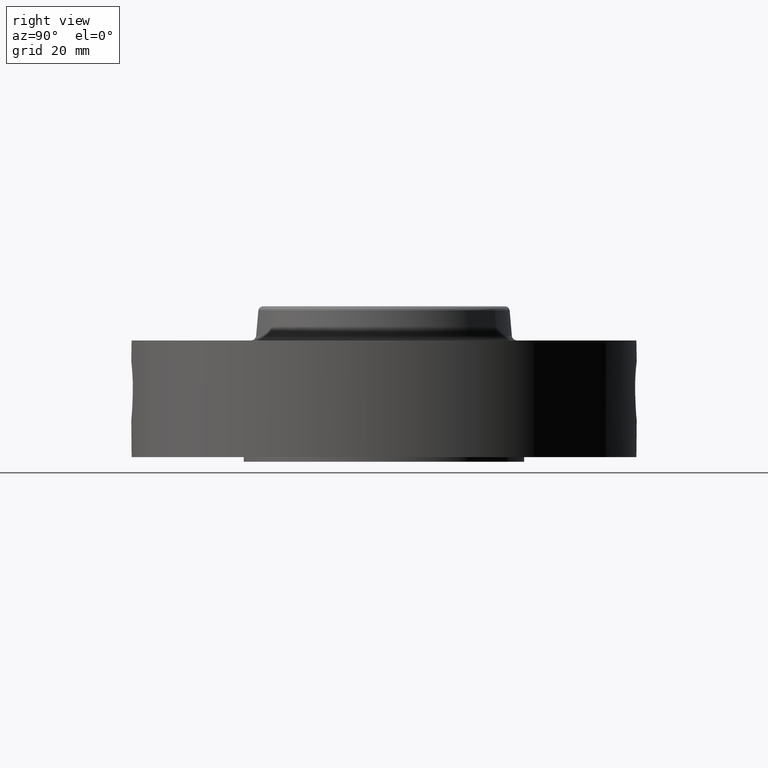
[diagram: clean part render]
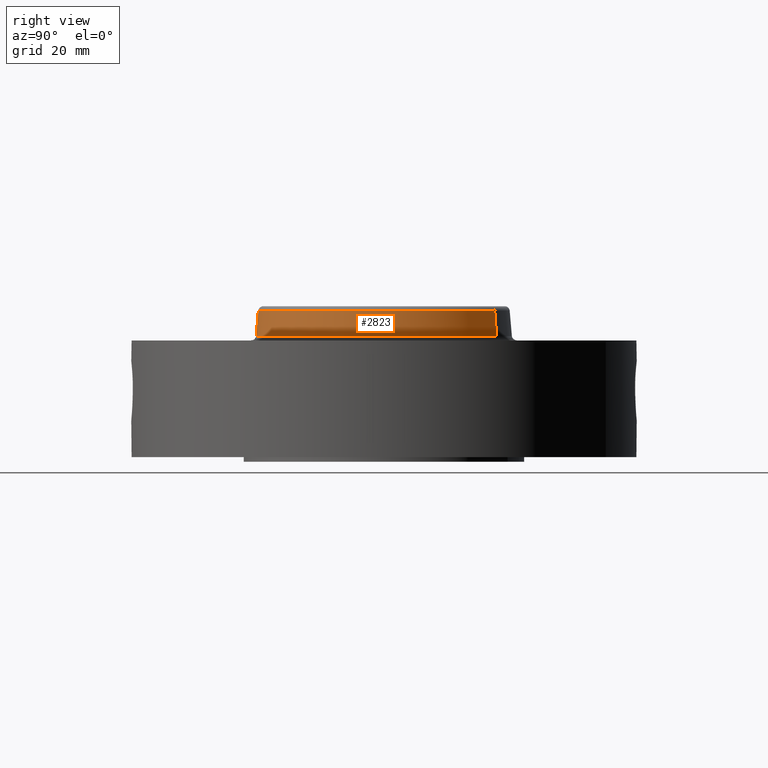
[diagram: same view with one face highlighted and labeled with its STEP entity id]
A machine part, right view. The second image highlights one B-rep face of the part: STEP entity #2823.
In plain terms, the highlighted conical surface has half-angle 5 deg.
Its self-contained STEP definition (entity closure, byte-faithful):
#2173=AXIS2_PLACEMENT_3D('Circle Axis2P3D',#2171,#2172,$) ;
#2796=AXIS2_PLACEMENT_3D('Cone Axis2P3D',#2793,#2794,#2795) ;
#2807=AXIS2_PLACEMENT_3D('Circle Axis2P3D',#2805,#2806,$) ;
#2168=CARTESIAN_POINT('Vertex',(0.79115194961,1.44819392977,1.61477065544)) ;
#2171=CARTESIAN_POINT('Axis2P3D Location',(0.,0.,1.61477065544)) ;
#2175=CARTESIAN_POINT('Vertex',(-0.79115194961,-1.44819392977,1.61477065544)) ;
#2793=CARTESIAN_POINT('Axis2P3D Location',(0.,0.,1.94522934457)) ;
#2798=CARTESIAN_POINT('Line Origine',(0.784221520474,1.43550786433,1.78000000001)) ;
#2802=CARTESIAN_POINT('Vertex',(0.777291091337,1.42282179889,1.94522934457)) ;
#2805=CARTESIAN_POINT('Axis2P3D Location',(0.,0.,1.94522934457)) ;
#2809=CARTESIAN_POINT('Vertex',(-0.777291091337,-1.42282179889,1.94522934457)) ;
#2812=CARTESIAN_POINT('Line Origine',(-0.784221520474,-1.43550786433,1.78000000001)) ;
#2172=DIRECTION('Axis2P3D Direction',(0.,0.,-0.0393700787402)) ;
#2794=DIRECTION('Axis2P3D Direction',(0.,0.,-0.0393700787402)) ;
#2795=DIRECTION('Axis2P3D XDirection',(-0.0188750212049,-0.0345504945626,0.)) ;
#2799=DIRECTION('Vector Direction',(0.00164506649249,0.0030112740159,-0.0392202637044)) ;
#2806=DIRECTION('Axis2P3D Direction',(0.,0.,-0.0393700787402)) ;
#2813=DIRECTION('Vector Direction',(-0.00164506649249,-0.0030112740159,-0.0392202637044)) ;
#2800=VECTOR('Line Direction',#2799,0.0393700787402) ;
#2814=VECTOR('Line Direction',#2813,0.0393700787402) ;
#2818=ORIENTED_EDGE('',*,*,#2177,.F.) ;
#2819=ORIENTED_EDGE('',*,*,#2804,.T.) ;
#2820=ORIENTED_EDGE('',*,*,#2811,.T.) ;
#2821=ORIENTED_EDGE('',*,*,#2816,.F.) ;
#2823=ADVANCED_FACE('PartBody',(#2822),#2797,.T.) ;
#2174=CIRCLE('generated circle',#2173,1.65020818856) ;
#2808=CIRCLE('generated circle',#2807,1.6212967995) ;
#2797=CONICAL_SURFACE('Cone',#2796,1.6212967995,0.0872664625997) ;
#2177=EDGE_CURVE('',#2169,#2176,#2174,.T.) ;
#2804=EDGE_CURVE('',#2169,#2803,#2801,.F.) ;
#2811=EDGE_CURVE('',#2803,#2810,#2808,.T.) ;
#2816=EDGE_CURVE('',#2176,#2810,#2815,.F.) ;
#2817=EDGE_LOOP('',(#2818,#2819,#2820,#2821)) ;
#2822=FACE_OUTER_BOUND('',#2817,.T.) ;
#2801=LINE('Line',#2798,#2800) ;
#2815=LINE('Line',#2812,#2814) ;
#2169=VERTEX_POINT('',#2168) ;
#2176=VERTEX_POINT('',#2175) ;
#2803=VERTEX_POINT('',#2802) ;
#2810=VERTEX_POINT('',#2809) ;